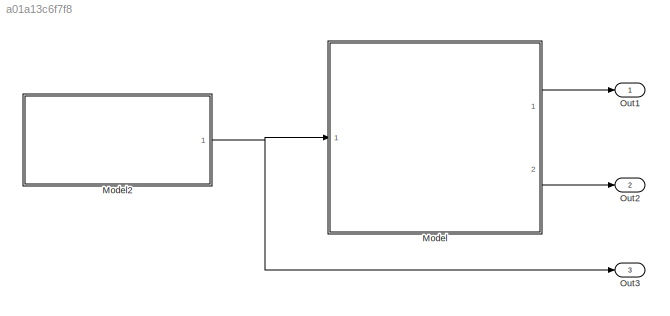
MODEL slx_a01a13c6f7f8
KIND model
CONFIG AbsTol = auto
CONFIG FixedStep = auto
CONFIG MaxStep = auto
CONFIG MinStep = auto
CONFIG RelTol = 1e-6
CONFIG SampleTimeConstraint = Unconstrained
CONFIG Solver = ode45
CONFIG SolverMode = Auto
CONFIG SolverName = ode45
CONFIG StartTime = 0.0
CONFIG StopTime = 10
BLOCK [ModelReference] Model
  CopyOfModelName = exemplo_bloco_modelo.slx
  DefaultDataLogging = on
  ModelNameDialog = exemplo_bloco_modelo.slx
  ModelReferenceVersion = 1.117
  Ports = [1, 2]
BLOCK [ModelReference] Model2
  CopyOfModelName = exemplo_bloco_Sinal.slx
  DefaultDataLogging = on
  ModelNameDialog = exemplo_bloco_Sinal.slx
  ModelReferenceVersion = 1.12
  Ports = [0, 1]
BLOCK [Outport] Out1
  IconDisplay = Port number
BLOCK [Outport] Out2
  IconDisplay = Port number
  Port = 2
BLOCK [Outport] Out3
  IconDisplay = Port number
  Port = 3
NET Model2:1 -> Model:1, Out3:1
LINE Model:1 -> Out1:1
LINE Model:2 -> Out2:1
note: NET lines group one-source signal fan-out (src -> all destinations, sorted); 1:1 wires keep LINE
